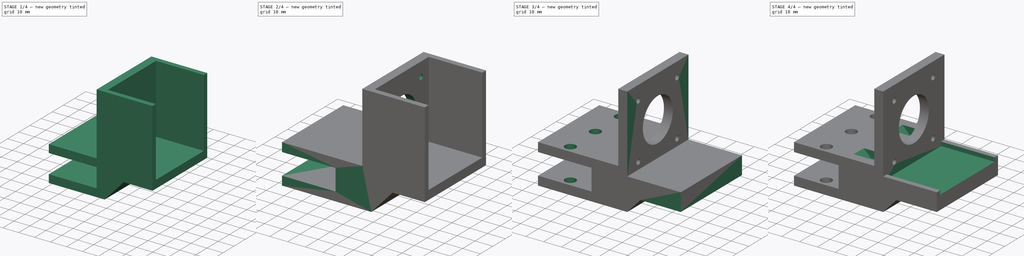
[diagram: build sequence overview — one tinted view per stage of 4, left to right]
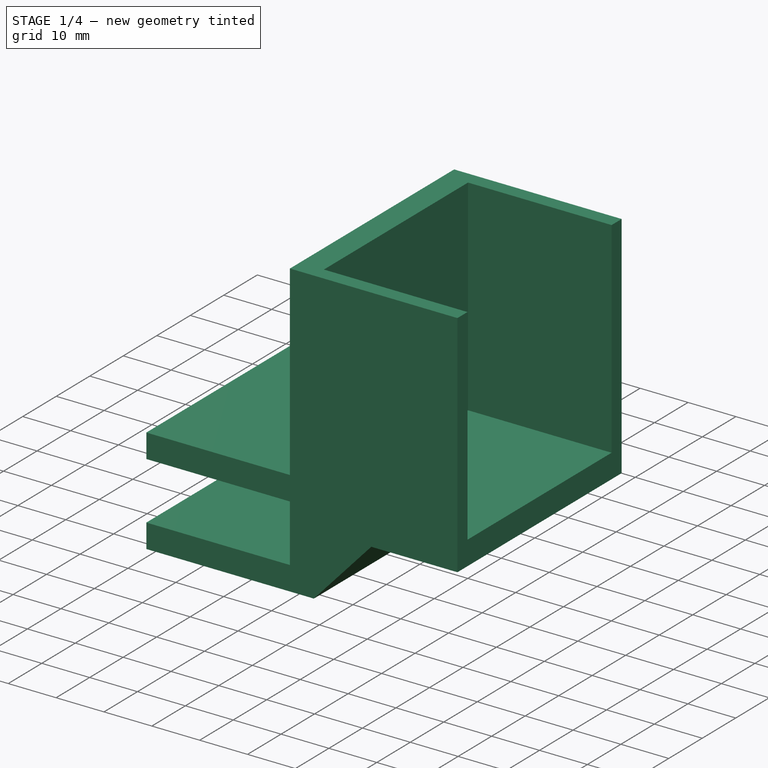
[diagram: stage 1 of 4 — iso view after this stage's code; geometry added in this stage tinted green]
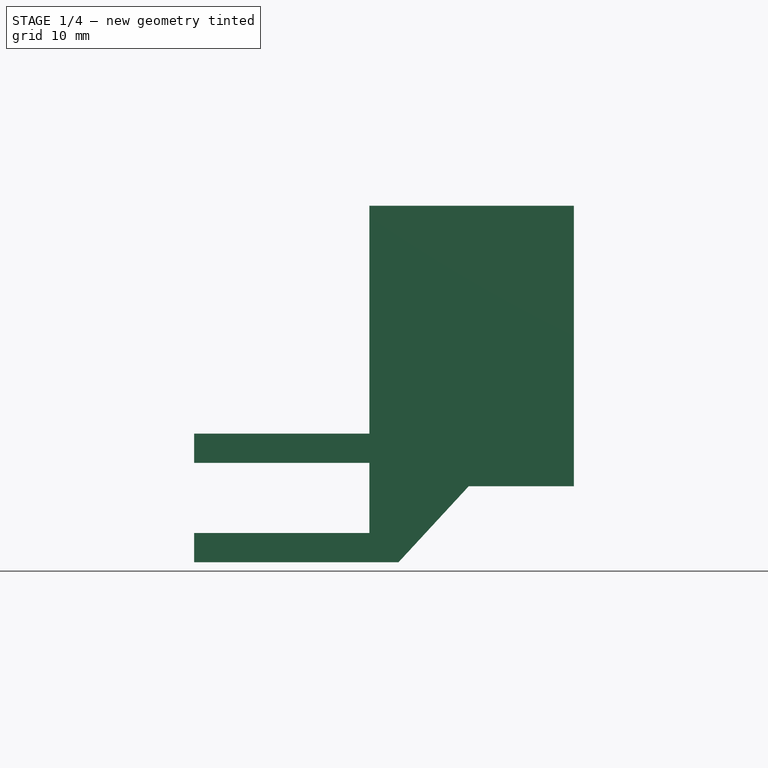
[diagram: stage 1 of 4 — front view after this stage's code; geometry added in this stage tinted green]
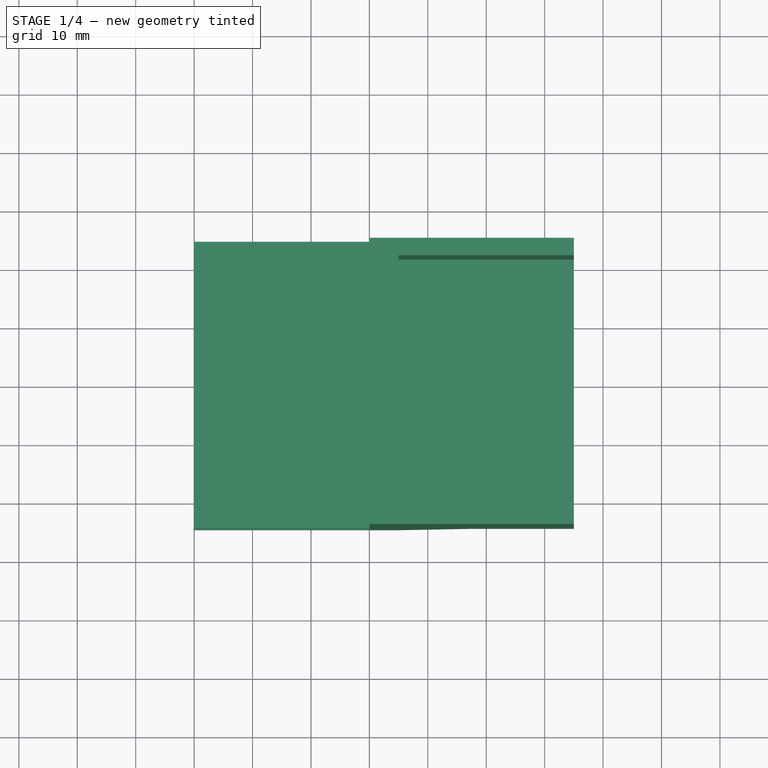
[diagram: stage 1 of 4 — top view after this stage's code; geometry added in this stage tinted green]
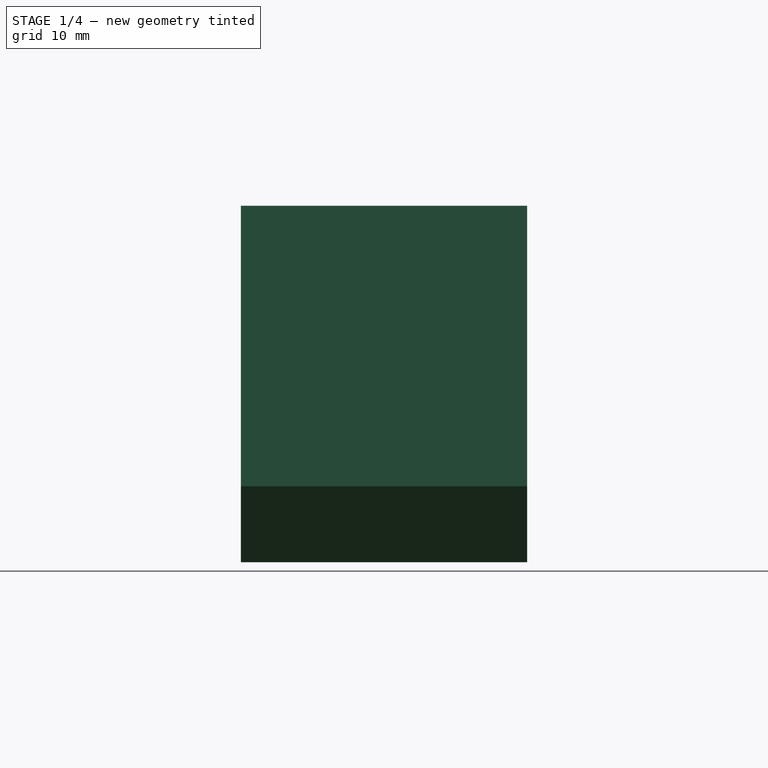
[diagram: stage 1 of 4 — right view after this stage's code; geometry added in this stage tinted green]
FCSTD DOCUMENT  (FreeCAD 1.0R39109 (Git))
Label: seat_motor
License: All rights reserved
LicenseURL: https://en.wikipedia.org/wiki/All_rights_reserved
objects: Sketcher::SketchObject×7, PartDesign::Pad×6, PartDesign::Pocket×6, PartDesign::Chamfer×2, PartDesign::Body×1
note: 57 computed .brp shape members not serialized (recipe doc carries the construction recipe); baked Part::Feature solids carry a one-line shape summary decoded from their .brp

FEATURE [Sketcher::SketchObject] Sketch
  ArcFitTolerance = 1e-06
  AttachmentSupport = -> [XZ_Plane]
  FullyConstrained = true
  MakeInternals = false
  MapMode = 5
  Placement = pos=(0,0,0) rot=(1,0,0;1.5708rad)
  sketch-geometry (14):
    g0: LineSegment StartX=0 StartY=17 StartZ=0 EndX=30 EndY=17 EndZ=0
    g1: LineSegment StartX=30 StartY=17 StartZ=0 EndX=30 EndY=5 EndZ=0
    g2: LineSegment StartX=30 StartY=5 StartZ=0 EndX=0 EndY=5 EndZ=0
    g3: LineSegment StartX=0 StartY=5 StartZ=0 EndX=0 EndY=0 EndZ=0
    g4: LineSegment StartX=65 StartY=13 StartZ=0 EndX=65 EndY=18 EndZ=0
    g5: LineSegment StartX=65 StartY=18 StartZ=0 EndX=35 EndY=18 EndZ=0
    g6: LineSegment StartX=35 StartY=18 StartZ=0 EndX=35 EndY=61 EndZ=0
    g7: LineSegment StartX=35 StartY=61 StartZ=0 EndX=30 EndY=61 EndZ=0
    g8: LineSegment StartX=30 StartY=61 StartZ=0 EndX=30 EndY=22 EndZ=0
    g9: LineSegment StartX=30 StartY=22 StartZ=0 EndX=0 EndY=22 EndZ=0
    g10: LineSegment StartX=0 StartY=22 StartZ=0 EndX=0 EndY=17 EndZ=0
    g11: LineSegment StartX=0 StartY=0 StartZ=0 EndX=35 EndY=0 EndZ=0
    g12: LineSegment StartX=35 StartY=0 StartZ=0 EndX=35 EndY=13 EndZ=0
    g13: LineSegment StartX=35 StartY=13 StartZ=0 EndX=65 EndY=13 EndZ=0
  constraints (41):
    c: PointOnObject(g0,g-2)
    c: Horizontal(g0)
    c: Coincident(g0,g1)
    c: Vertical(g1)
    c: Coincident(g1,g2)
    c: Horizontal(g2)
    c: Coincident(g2,g3)
    c: Vertical(g3)
    c: Vertical(g4)
    c: Coincident(g4,g5)
    c: Horizontal(g5)
    c: Coincident(g5,g6)
    c: Vertical(g6)
    c: Coincident(g6,g7)
    c: Horizontal(g7)
    c: Coincident(g7,g8)
    c: Vertical(g8)
    c: Coincident(g8,g9)
    c: Horizontal(g9)
    c: Coincident(g9,g10)
    c: Coincident(g10,g0)
    c: Vertical(g10)
    c: Coincident(g3,g11)
    c: Horizontal(g11)
    c: Vertical(g0,g8)
    c: DistanceX(g9,g9) = 30
    c: Equal(g10,g3)
    c: Distance(g10,g10) = 5
    c: DistanceY(g1,g1) = 12
    c: DistanceY(g5,g8) = 4
    c: Coincident(g11,g12)
    c: Coincident(g12,g13)
    c: Coincident(g13,g4)
    c: Horizontal(g13)
    c: Vertical(g12,g5)
    c: Distance(g7,g7) = 5
    c: DistanceY(g4,g4) = 5
    c: DistanceX(g5,g5) = 30
    c: DistanceY(g6,g6) = 43
    c: Coincident(g3,g-1)
    c: Vertical(g12)
FEATURE [PartDesign::Pad] Pad
  Direction = (0,-1,2e-16)
  Length = 60
  Length2 = 10
  Placement = pos=(0,0,0) rot=(1,0,0;1.5708rad)
  Profile = -> Sketch
  ReferenceAxis = -> Sketch [N_Axis]
  Refine = true
  Suppressed = false
  Type = 0
FEATURE [Sketcher::SketchObject] Sketch001
  ArcFitTolerance = 1e-06
  AttachmentSupport = -> [Pad]
  FullyConstrained = true
  MakeInternals = false
  MapMode = 5
  Placement = pos=(0,7.9e-15,18) rot=(0,0,1;3.14159rad)
  sketch-geometry (10):
    g0: LineSegment StartX=-35 StartY=54.5 StartZ=0 EndX=-35 EndY=51.5 EndZ=0
    g1: LineSegment StartX=-35 StartY=51.5 StartZ=0 EndX=-65 EndY=51.5 EndZ=0
    g2: LineSegment StartX=-65 StartY=51.5 StartZ=0 EndX=-65 EndY=54.5 EndZ=0
    g3: LineSegment StartX=-65 StartY=54.5 StartZ=0 EndX=-35 EndY=54.5 EndZ=0
    g4: LineSegment StartX=-35 StartY=5.5 StartZ=0 EndX=-35 EndY=8.5 EndZ=0
    g5: LineSegment StartX=-35 StartY=8.5 StartZ=0 EndX=-65 EndY=8.5 EndZ=0
    g6: LineSegment StartX=-65 StartY=8.5 StartZ=0 EndX=-65 EndY=5.5 EndZ=0
    g7: LineSegment StartX=-65 StartY=5.5 StartZ=0 EndX=-35 EndY=5.5 EndZ=0
    g8: LineSegment [constr] StartX=-80 StartY=0 StartZ=0 EndX=-80 EndY=30 EndZ=0
    g9: LineSegment [constr] StartX=-75 StartY=0 StartZ=0 EndX=-75 EndY=60 EndZ=0
  constraints (32):
    c: Coincident(g0,g1)
    c: Coincident(g1,g2)
    c: Coincident(g2,g3)
    c: Coincident(g3,g0)
    c: Vertical(g0)
    c: Vertical(g2)
    c: Horizontal(g1)
    c: Horizontal(g3)
    c: Coincident(g4,g5)
    c: Coincident(g5,g6)
    c: Coincident(g6,g7)
    c: Coincident(g7,g4)
    c: Vertical(g4)
    c: Vertical(g6)
    c: Horizontal(g5)
    c: Horizontal(g7)
    c: DistanceY(g2,g2) = 3
    c: Equal(g6,g2)
    c: Equal(g5,g1)
    c: Vertical(g4,g0)
    c: Distance(g8) = 30
    c: Vertical(g8)
    c: PointOnObject(g8,g-1)
    c: DistanceX(g7,g7) = 30
    c: DistanceX(g6,g-1) = 65
    c: PointOnObject(g9,g-1)
    c: Vertical(g9)
    c: DistanceY(g9,g9) = 60
    c: DistanceY(g4,g0) = 43
    c: DistanceY(g5,g8) = 21.5
    c: Distance(g8,g9) = 5
    c: DistanceX(g9,g-1) = 75
FEATURE [Sketcher::SketchObject] Sketch003
  ArcFitTolerance = 1e-06
  FullyConstrained = true
  MakeInternals = false
  MapMode = 5
  Placement = pos=(65,-1.6944e-11,1.09092e-11) rot=(0.707107,0,0.707107;3.14159rad)
  sketch-geometry (8):
    g0: LineSegment StartX=-5 StartY=61.5 StartZ=0 EndX=-5 EndY=54.5 EndZ=0
    g1: LineSegment StartX=-5 StartY=54.5 StartZ=0 EndX=65 EndY=54.5 EndZ=0
    g2: LineSegment StartX=65 StartY=54.5 StartZ=0 EndX=65 EndY=61.5 EndZ=0
    g3: LineSegment StartX=65 StartY=61.5 StartZ=0 EndX=-5 EndY=61.5 EndZ=0
    g4: LineSegment StartX=-5 StartY=5.5 StartZ=0 EndX=-5 EndY=-1.5 EndZ=0
    g5: LineSegment StartX=-5 StartY=-1.5 StartZ=0 EndX=65 EndY=-1.5 EndZ=0
    g6: LineSegment StartX=65 StartY=-1.5 StartZ=0 EndX=65 EndY=5.5 EndZ=0
    g7: LineSegment StartX=65 StartY=5.5 StartZ=0 EndX=-5 EndY=5.5 EndZ=0
  constraints (24):
    c: Coincident(g0,g1)
    c: Coincident(g1,g2)
    c: Coincident(g2,g3)
    c: Coincident(g3,g0)
    c: Vertical(g0)
    c: Vertical(g2)
    c: Horizontal(g1)
    c: Horizontal(g3)
    c: Coincident(g4,g5)
    c: Coincident(g5,g6)
    c: Coincident(g6,g7)
    c: Coincident(g7,g4)
    c: Vertical(g4)
    c: Vertical(g6)
    c: Horizontal(g5)
    c: Horizontal(g7)
    c: Equal(g6,g2)
    c: DistanceY(g0,g0) = 7
    c: DistanceY(g4,g0) = 49
    c: Vertical(g4,g0)
    c: DistanceX(g7,g7) = 70
    c: DistanceX(g4,g-1) = 5
    c: DistanceY(g-1,g4) = 5.5
    c: Vertical(g1,g6)
FEATURE [PartDesign::Pad] Pad001
  BaseFeature = -> Pad
  Direction = (0,0,1)
  Length = 43
  Length2 = 10
  Placement = pos=(0,0,0) rot=(1,0,0;1.5708rad)
  Profile = -> Sketch001
  ReferenceAxis = -> Sketch001 [N_Axis]
  Refine = true
  Suppressed = false
  Type = 0
FEATURE [PartDesign::Pocket] Pocket001
  BaseFeature = -> Pad001
  Direction = (-1,2.608e-13,-1.679e-13)
  Length = 5
  Length2 = 5
  Placement = pos=(0,0,0) rot=(1,0,0;1.5708rad)
  Profile = -> Sketch003
  ReferenceAxis = -> Sketch003 [N_Axis]
  Refine = true
  Suppressed = false
  Type = 1
FEATURE [PartDesign::Chamfer] Chamfer
  Angle = 45
  Base = -> Pocket001 [Edge11]
  BaseFeature = -> Pocket001
  ChamferType = 1
  FlipDirection = false
  Placement = pos=(0,0,0) rot=(1,0,0;1.5708rad)
  Refine = true
  Size = 12
  Size2 = 12.99
  SupportTransform = false
  Suppressed = false
  UseAllEdges = false
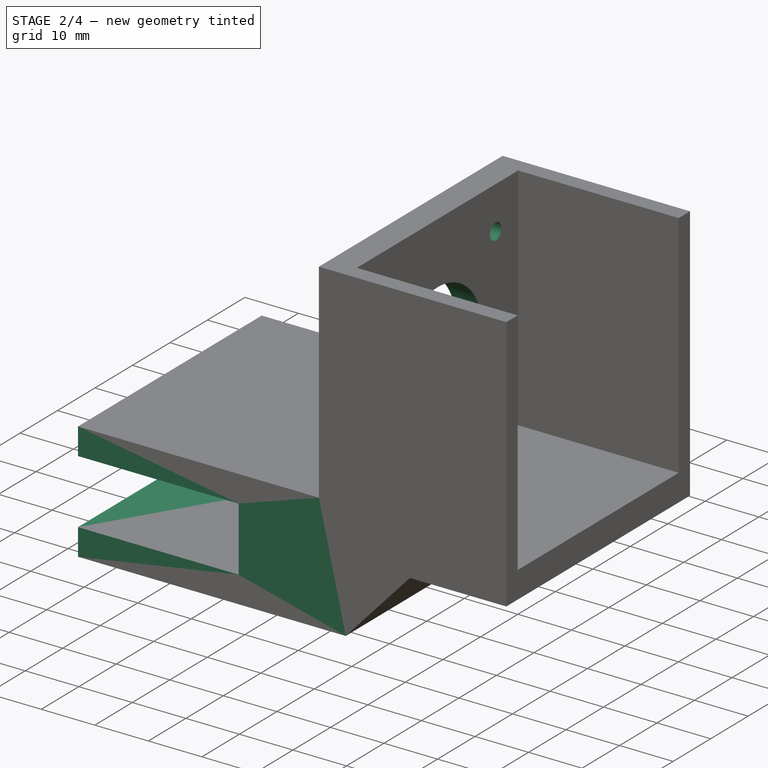
[diagram: stage 2 of 4 — iso view after this stage's code; geometry added in this stage tinted green]
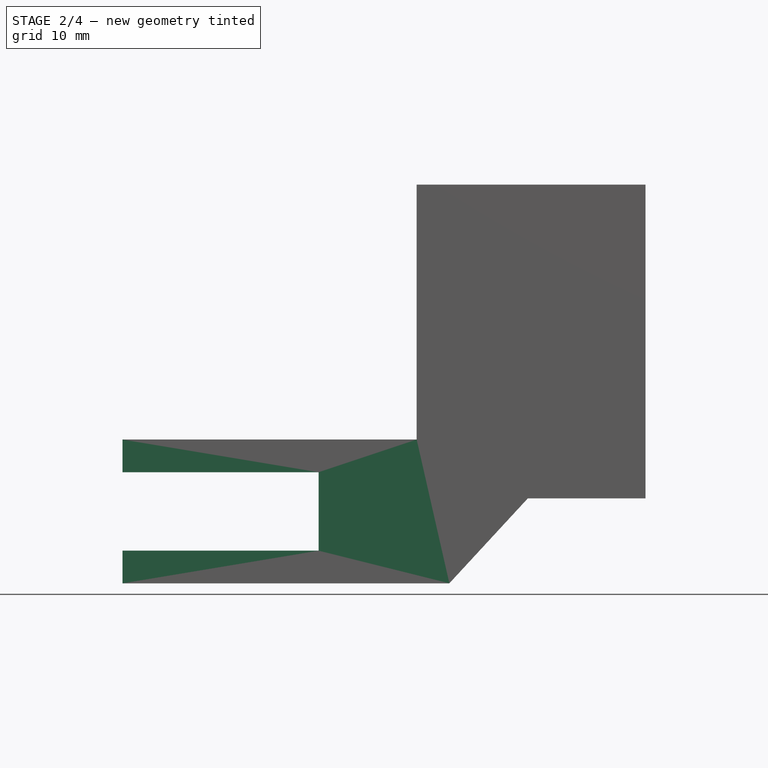
[diagram: stage 2 of 4 — front view after this stage's code; geometry added in this stage tinted green]
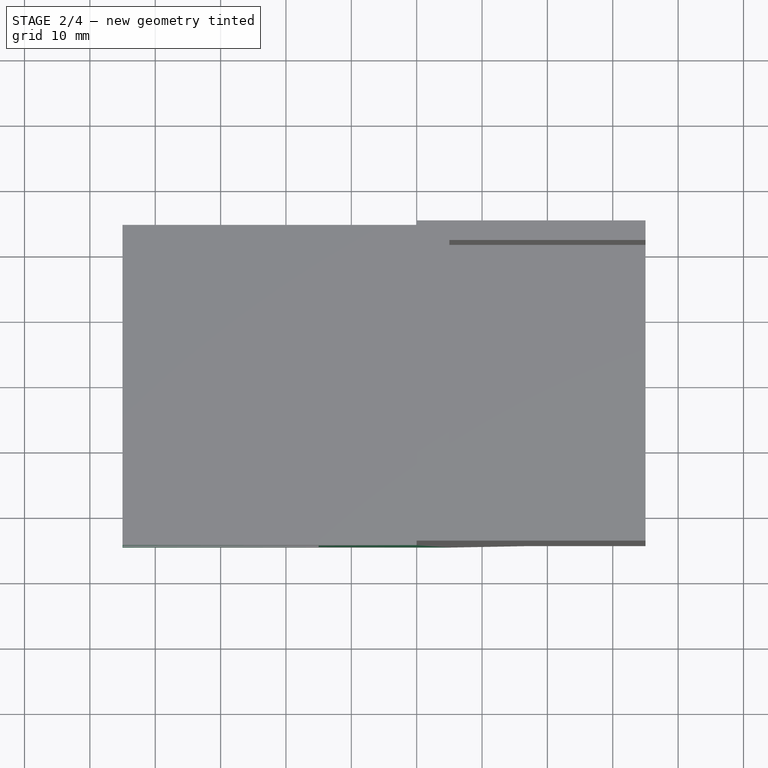
[diagram: stage 2 of 4 — top view after this stage's code; geometry added in this stage tinted green]
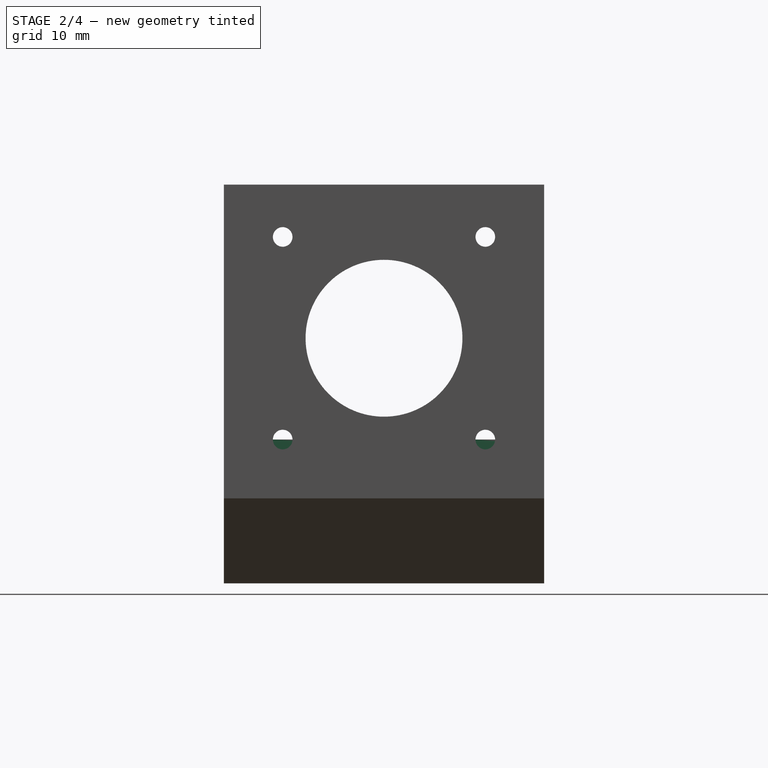
[diagram: stage 2 of 4 — right view after this stage's code; geometry added in this stage tinted green]
FEATURE [Sketcher::SketchObject] Sketch004
  ArcFitTolerance = 1e-06
  AttachmentSupport = -> [Chamfer]
  FullyConstrained = true
  MakeInternals = false
  MapMode = 5
  Placement = pos=(35,0,0) rot=(0.707107,0,0.707107;3.14159rad)
  sketch-geometry (13):
    g0: Circle CenterX=37.5 CenterY=30 CenterZ=0 NormalX=0 NormalY=0 NormalZ=1 AngleXU=0 Radius=12
    g1: LineSegment [constr] StartX=22 StartY=45.5 StartZ=0 EndX=22 EndY=14.5 EndZ=0
    g2: LineSegment [constr] StartX=22 StartY=14.5 StartZ=0 EndX=53 EndY=14.5 EndZ=0
    g3: LineSegment [constr] StartX=53 StartY=14.5 StartZ=0 EndX=53 EndY=45.5 EndZ=0
    g4: LineSegment [constr] StartX=53 StartY=45.5 StartZ=0 EndX=22 EndY=45.5 EndZ=0
    g5: Circle CenterX=22 CenterY=45.5 CenterZ=0 NormalX=0 NormalY=0 NormalZ=1 AngleXU=0 Radius=1.5
    g6: Circle CenterX=53 CenterY=45.5 CenterZ=0 NormalX=0 NormalY=0 NormalZ=1 AngleXU=0 Radius=1.5
    g7: Circle CenterX=53 CenterY=14.5 CenterZ=0 NormalX=0 NormalY=0 NormalZ=1 AngleXU=0 Radius=1.5
    g8: Circle CenterX=22 CenterY=14.5 CenterZ=0 NormalX=0 NormalY=0 NormalZ=1 AngleXU=0 Radius=1.5
    g9: LineSegment [constr] StartX=16 StartY=51.5 StartZ=0 EndX=16 EndY=8.5 EndZ=0
    g10: LineSegment [constr] StartX=16 StartY=8.5 StartZ=0 EndX=59 EndY=8.5 EndZ=0
    g11: LineSegment [constr] StartX=59 StartY=8.5 StartZ=0 EndX=59 EndY=51.5 EndZ=0
    g12: LineSegment [constr] StartX=59 StartY=51.5 StartZ=0 EndX=16 EndY=51.5 EndZ=0
  constraints (35):
    c: Diameter(g0) = 24
    c: Coincident(g1,g2)
    c: Coincident(g2,g3)
    c: Coincident(g3,g4)
    c: Coincident(g4,g1)
    c: Vertical(g1)
    c: Vertical(g3)
    c: Horizontal(g2)
    c: Horizontal(g4)
    c: Coincident(g5,g1)
    c: Coincident(g6,g3)
    c: Coincident(g7,g2)
    c: Coincident(g8,g1)
    c: Equal(g8,g5)
    c: Equal(g5,g6)
    c: Equal(g6,g7)
    c: Diameter(g7) = 3
    c: Equal(g2,g3)
    c: DistanceY(g3,g3) = 31
    c: DistanceX(g0,g2) = 15.5
    c: DistanceY(g2,g0) = 15.5
    c: Coincident(g9,g10)
    c: Coincident(g10,g11)
    c: Coincident(g11,g12)
    c: Coincident(g12,g9)
    c: Vertical(g9)
    c: Vertical(g11)
    c: Horizontal(g10)
    c: Horizontal(g12)
    c: Equal(g11,g10)
    c: DistanceX(g10,g10) = 43
    c: DistanceX(g-1,g1) = 22
    c: DistanceY(g-1,g1) = 14.5
    c: DistanceY(g1,g9) = 6
    c: DistanceX(g9,g1) = 6
FEATURE [PartDesign::Pocket] Pocket002
  BaseFeature = -> Chamfer
  Direction = (-1,0,2e-16)
  Length = 5
  Length2 = 5
  Placement = pos=(0,0,0) rot=(1,0,0;1.5708rad)
  Profile = -> Sketch004
  ReferenceAxis = -> Sketch004 [N_Axis]
  Refine = true
  Suppressed = false
  Type = 0
FEATURE [PartDesign::Pad] Pad002
  BaseFeature = -> Pocket002
  Direction = (-1,0,0)
  Length = 15
  Length2 = 10
  Placement = pos=(0,0,0) rot=(1,0,0;1.5708rad)
  Profile = -> Pocket002 [Face14]
  Refine = true
  Suppressed = false
  Type = 0
FEATURE [PartDesign::Pad] Pad003
  BaseFeature = -> Pad002
  Direction = (-1,0,0)
  Length = 15
  Length2 = 10
  Placement = pos=(0,0,0) rot=(1,0,0;1.5708rad)
  Profile = -> Pad002 [Face11,Face8]
  Refine = true
  Suppressed = false
  Type = 0
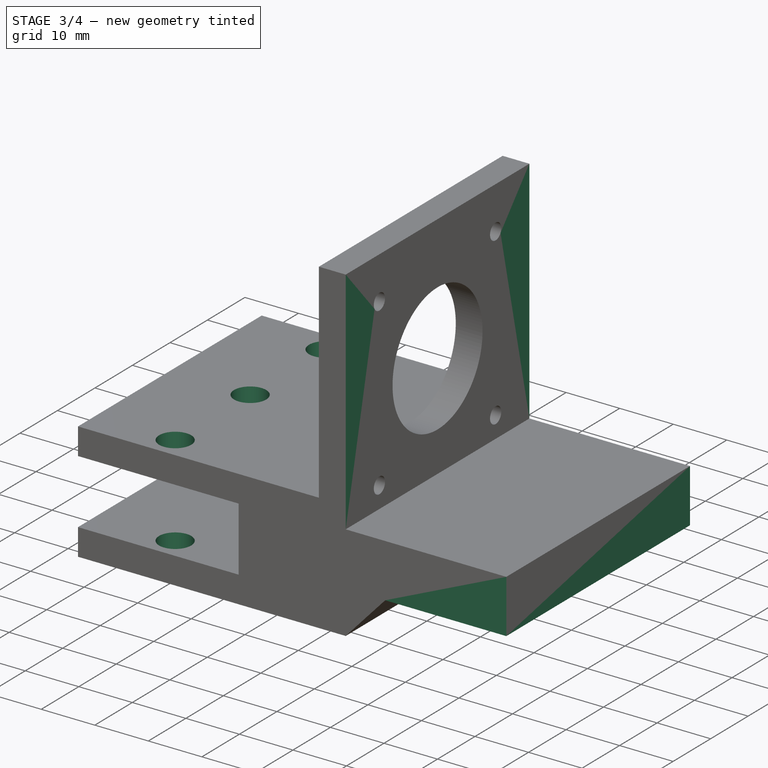
[diagram: stage 3 of 4 — iso view after this stage's code; geometry added in this stage tinted green]
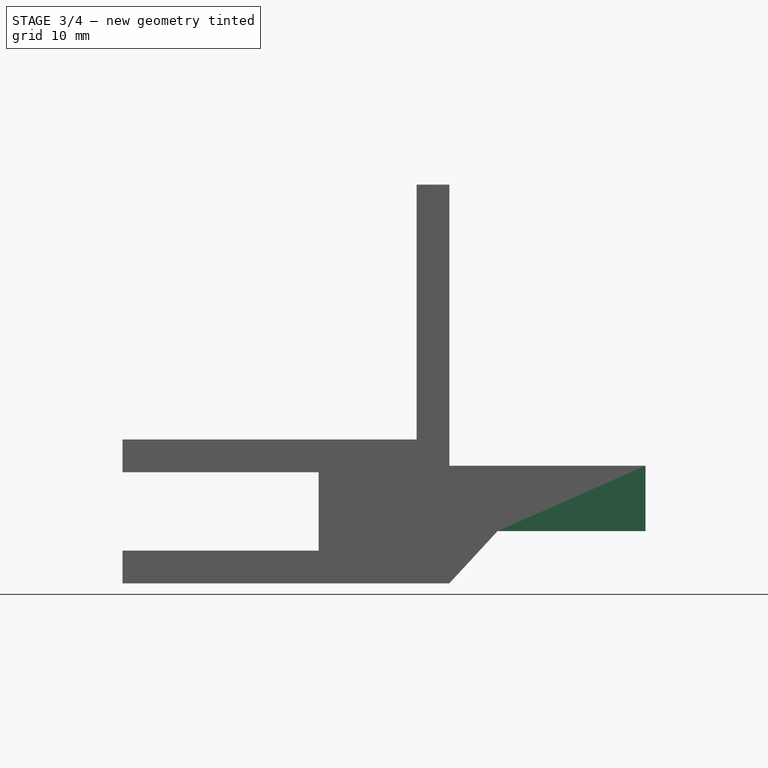
[diagram: stage 3 of 4 — front view after this stage's code; geometry added in this stage tinted green]
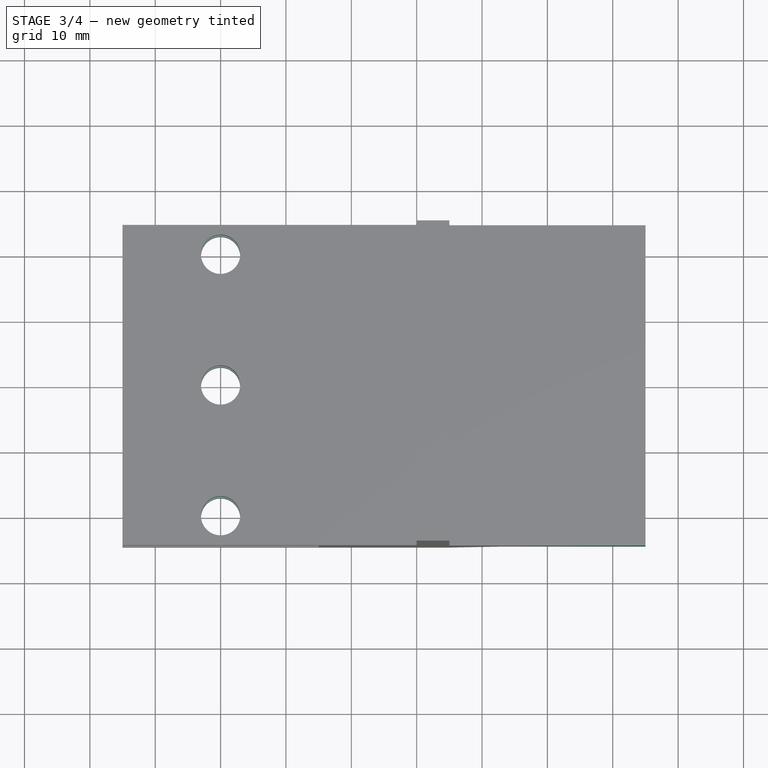
[diagram: stage 3 of 4 — top view after this stage's code; geometry added in this stage tinted green]
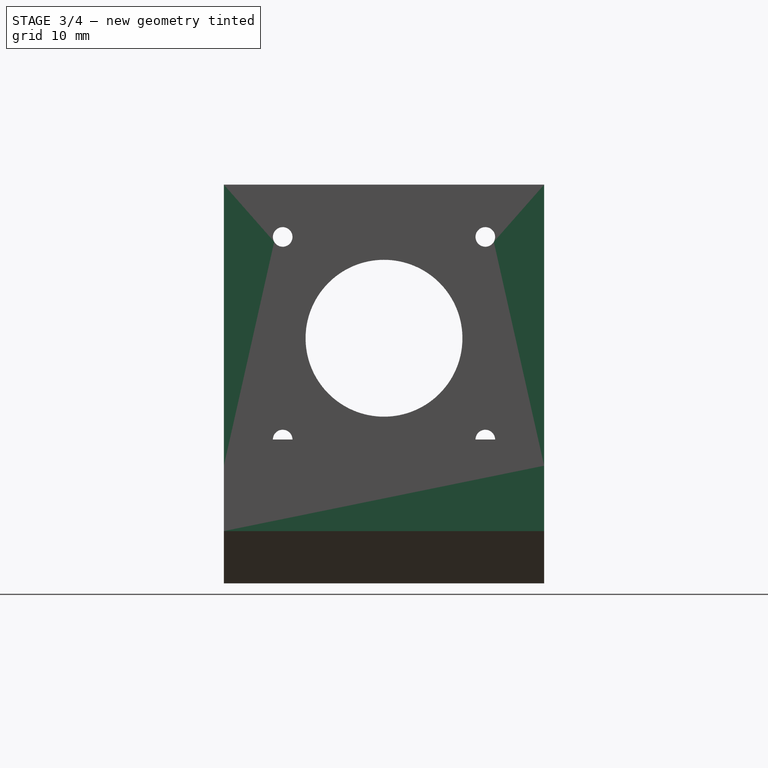
[diagram: stage 3 of 4 — right view after this stage's code; geometry added in this stage tinted green]
FEATURE [Sketcher::SketchObject] Sketch005
  ArcFitTolerance = 1e-06
  AttachmentSupport = -> [Pad003]
  FullyConstrained = true
  MakeInternals = false
  MapMode = 5
  Placement = pos=(0,9.4e-15,22) rot=(0,0,1;3.14159rad)
  sketch-geometry (5):
    g0: LineSegment [constr] StartX=15 StartY=5.5 StartZ=0 EndX=-15 EndY=5.5 EndZ=0
    g1: LineSegment [constr] StartX=15 StartY=5.5 StartZ=0 EndX=15 EndY=54.5 EndZ=0
    g2: Circle CenterX=1.8e-15 CenterY=50 CenterZ=0 NormalX=0 NormalY=0 NormalZ=1 AngleXU=0 Radius=3
    g3: Circle CenterX=1.8e-15 CenterY=30 CenterZ=0 NormalX=0 NormalY=0 NormalZ=1 AngleXU=0 Radius=3
    g4: Circle CenterX=1.8e-15 CenterY=10 CenterZ=0 NormalX=0 NormalY=0 NormalZ=1 AngleXU=0 Radius=3
  constraints (16):
    c: Distance(g0) = 30
    c: Horizontal(g0)
    c: DistanceX(g-1,g0) = 15
    c: DistanceY(g-1,g0) = 5.5
    c: Vertical(g1)
    c: DistanceY(g1,g1) = 49
    c: Vertical(g4,g3)
    c: Vertical(g3,g2)
    c: DistanceX(g0,g4) = 15
    c: DistanceY(g4,g2) = 40
    c: DistanceY(g3,g2) = 20
    c: DistanceY(g3,g1) = 24.5
    c: Equal(g4,g3)
    c: Equal(g3,g2)
    c: Diameter(g2) = 6
    c: Coincident(g1,g0)
FEATURE [PartDesign::Pocket] Pocket
  BaseFeature = -> Pad003
  Direction = (0,0,-1)
  Length = 5
  Length2 = 5
  Placement = pos=(0,0,0) rot=(1,0,0;1.5708rad)
  Profile = -> Sketch005
  ReferenceAxis = -> Sketch005 [N_Axis]
  Refine = true
  Suppressed = false
  Type = 1
FEATURE [PartDesign::Pocket] Pocket003
  BaseFeature = -> Pocket
  Direction = (0,-1,2e-16)
  Length = 5
  Length2 = 50
  Placement = pos=(0,0,0) rot=(1,0,0;1.5708rad)
  Profile = -> Pocket [Face16]
  Refine = true
  Suppressed = false
  Type = 4
FEATURE [PartDesign::Pad] Pad004
  BaseFeature = -> Pocket003
  Direction = (0,3e-16,1)
  Length = 10
  Length2 = 10
  Placement = pos=(0,0,0) rot=(1,0,0;1.5708rad)
  Profile = -> Pocket003 [Face29]
  Refine = true
  Reversed = true
  Suppressed = false
  Type = 0
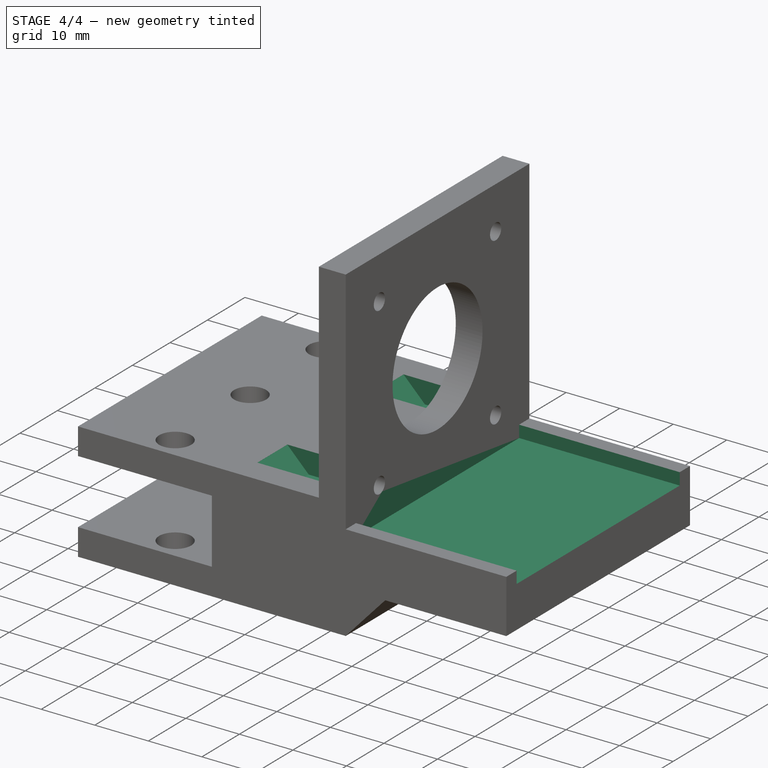
[diagram: stage 4 of 4 — iso view after this stage's code; geometry added in this stage tinted green]
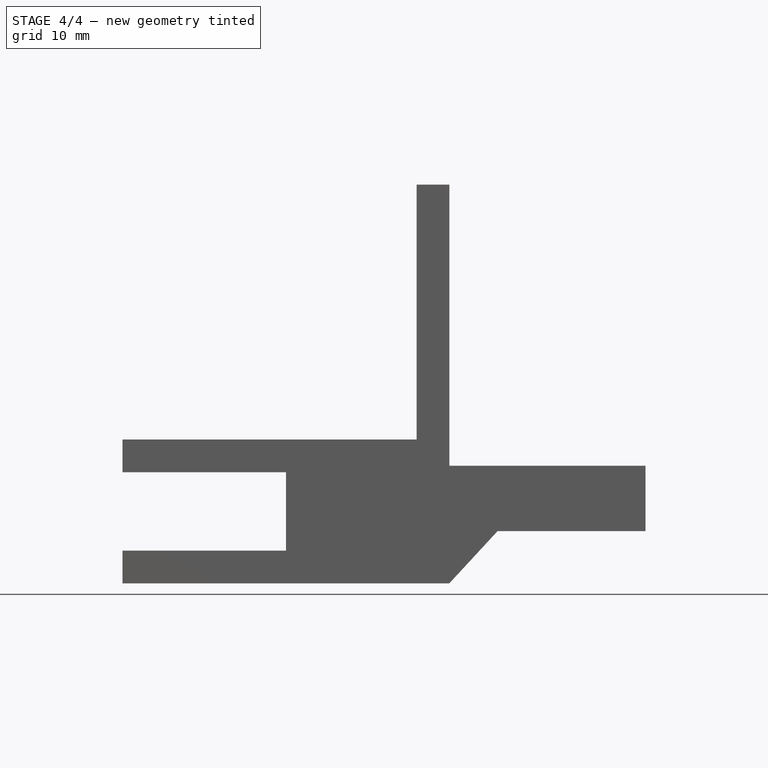
[diagram: stage 4 of 4 — front view after this stage's code; geometry added in this stage tinted green]
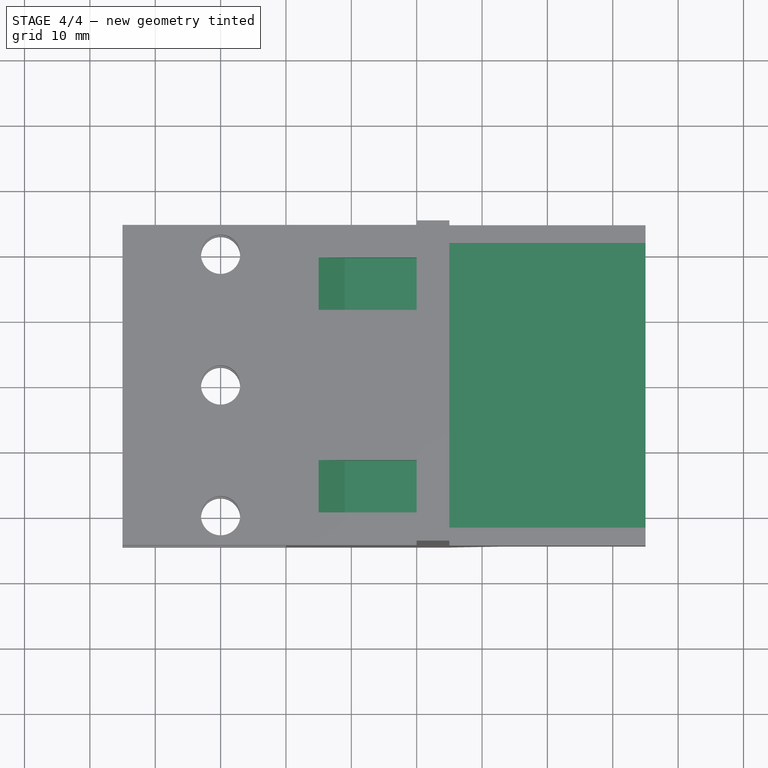
[diagram: stage 4 of 4 — top view after this stage's code; geometry added in this stage tinted green]
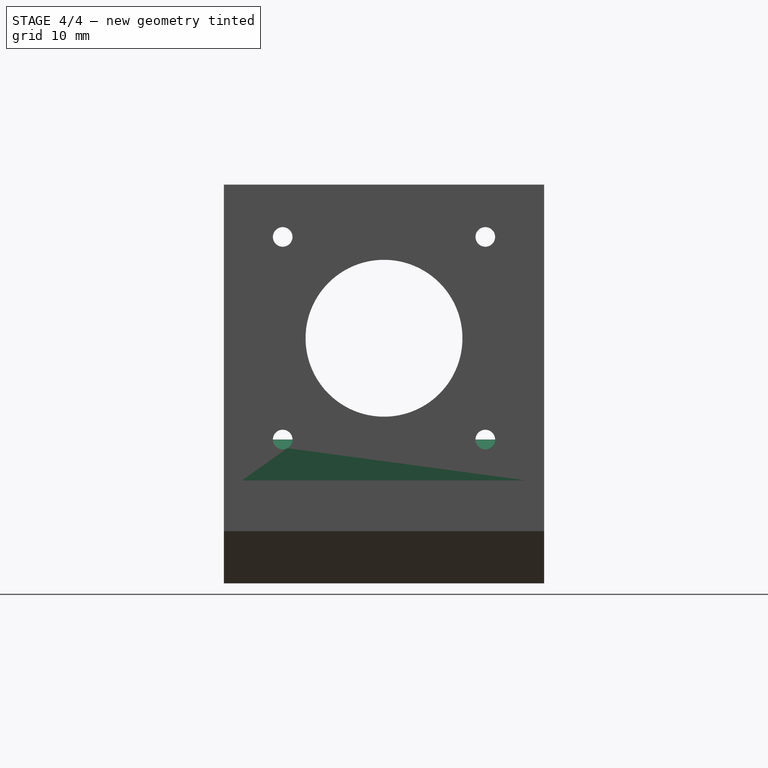
[diagram: stage 4 of 4 — right view after this stage's code; geometry added in this stage tinted green]
FEATURE [Sketcher::SketchObject] Sketch006
  ArcFitTolerance = 1e-06
  AttachmentSupport = -> [Pad004]
  FullyConstrained = true
  MakeInternals = false
  MapMode = 5
  Placement = pos=(65,-2.34e-13,-1.668e-13) rot=(0.707107,0,0.707107;3.14159rad)
  sketch-geometry (5):
    g0: Circle [constr] CenterX=37.5 CenterY=30 CenterZ=0 NormalX=0 NormalY=0 NormalZ=1 AngleXU=0 Radius=12
    g1: LineSegment StartX=15.75 StartY=51.75 StartZ=0 EndX=15.75 EndY=8.25 EndZ=0
    g2: LineSegment StartX=15.75 StartY=8.25 StartZ=0 EndX=59.25 EndY=8.25 EndZ=0
    g3: LineSegment StartX=59.25 StartY=8.25 StartZ=0 EndX=59.25 EndY=51.75 EndZ=0
    g4: LineSegment StartX=59.25 StartY=51.75 StartZ=0 EndX=15.75 EndY=51.75 EndZ=0
  constraints (15):
    c: Diameter(g0) = 24
    c: DistanceX(g-1,g0) = 37.5
    c: DistanceY(g-1,g0) = 30
    c: Coincident(g1,g2)
    c: Coincident(g2,g3)
    c: Coincident(g3,g4)
    c: Coincident(g4,g1)
    c: Vertical(g1)
    c: Vertical(g3)
    c: Horizontal(g2)
    c: Horizontal(g4)
    c: Equal(g2,g3)
    c: DistanceY(g3,g3) = 43.5
    c: DistanceY(g2,g0) = 21.75
    c: DistanceX(g0,g2) = 21.75
FEATURE [PartDesign::Pocket] Pocket004
  BaseFeature = -> Pad004
  Direction = (-1,3.6e-15,2.7e-15)
  Length = 30
  Length2 = 5
  Placement = pos=(0,0,0) rot=(1,0,0;1.5708rad)
  Profile = -> Sketch006
  ReferenceAxis = -> Sketch006 [N_Axis]
  Refine = true
  Suppressed = false
  Type = 0
FEATURE [PartDesign::Pad] Pad005
  BaseFeature = -> Pocket004
  Direction = (-1,0,0)
  Length = 5
  Length2 = 10
  Placement = pos=(0,0,0) rot=(1,0,0;1.5708rad)
  Profile = -> Pocket004 [Face11]
  Refine = true
  Suppressed = false
  Type = 0
FEATURE [Sketcher::SketchObject] Sketch007
  ArcFitTolerance = 1e-06
  AttachmentSupport = -> [Pad005]
  FullyConstrained = true
  MakeInternals = false
  MapMode = 5
  Placement = pos=(30,0,0) rot=(0.707107,0,-0.707107;3.14159rad)
  sketch-geometry (9):
    g0: LineSegment StartX=-26 StartY=49.5 StartZ=0 EndX=-26 EndY=41.5 EndZ=0
    g1: LineSegment StartX=-26 StartY=41.5 StartZ=0 EndX=-18 EndY=41.5 EndZ=0
    g2: LineSegment StartX=-18 StartY=41.5 StartZ=0 EndX=-18 EndY=49.5 EndZ=0
    g3: LineSegment StartX=-18 StartY=49.5 StartZ=0 EndX=-26 EndY=49.5 EndZ=0
    g4: LineSegment StartX=-26 StartY=18.5 StartZ=0 EndX=-26 EndY=10.5 EndZ=0
    g5: LineSegment StartX=-26 StartY=10.5 StartZ=0 EndX=-18 EndY=10.5 EndZ=0
    g6: LineSegment StartX=-18 StartY=10.5 StartZ=0 EndX=-18 EndY=18.5 EndZ=0
    g7: LineSegment StartX=-18 StartY=18.5 StartZ=0 EndX=-26 EndY=18.5 EndZ=0
    g8: LineSegment [constr] StartX=-22 StartY=14.5 StartZ=0 EndX=-22 EndY=45.5 EndZ=0
  constraints (28):
    c: Coincident(g0,g1)
    c: Coincident(g1,g2)
    c: Coincident(g2,g3)
    c: Coincident(g3,g0)
    c: Vertical(g0)
    c: Vertical(g2)
    c: Horizontal(g1)
    c: Horizontal(g3)
    c: Coincident(g4,g5)
    c: Coincident(g5,g6)
    c: Coincident(g6,g7)
    c: Coincident(g7,g4)
    c: Vertical(g4)
    c: Vertical(g6)
    c: Horizontal(g5)
    c: Horizontal(g7)
    c: Equal(g6,g5)
    c: Equal(g1,g2)
    c: Equal(g2,g6)
    c: Distance(g8) = 31
    c: Vertical(g8)
    c: DistanceY(g-1,g8) = 14.5
    c: DistanceX(g8,g-1) = 22
    c: DistanceY(g6,g6) = 8
    c: DistanceX(g4,g8) = 4
    c: DistanceY(g4,g8) = 4
    c: Vertical(g0,g4)
    c: DistanceY(g0,g8) = 4
FEATURE [PartDesign::Pocket] Pocket005
  BaseFeature = -> Pad005
  Direction = (1,0,2e-16)
  Length = 15
  Length2 = 5
  Placement = pos=(0,0,0) rot=(1,0,0;1.5708rad)
  Profile = -> Sketch007
  ReferenceAxis = -> Sketch007 [N_Axis]
  Refine = true
  Reversed = true
  Suppressed = false
  Type = 0
FEATURE [PartDesign::Chamfer] Chamfer001
  Angle = 45
  Base = -> Pocket005 [Edge113,Edge106]
  BaseFeature = -> Pocket005
  ChamferType = 0
  FlipDirection = false
  Placement = pos=(0,0,0) rot=(1,0,0;1.5708rad)
  Refine = true
  Size = 3.99
  Size2 = 1
  SupportTransform = false
  Suppressed = false
  UseAllEdges = false
FEATURE [PartDesign::Body] Body
  AllowCompound = false
  Group = -> [Sketch,Pad,Sketch001,Pad001,Sketch003,Pocket001,Chamfer,Sketch004,Pocket002,Pad002,Pad003,Sketch005,Pocket,Pocket003,Pad004,Sketch006,Pocket004,Pad005,Sketch007,Pocket005,Chamfer001]
  Origin = -> Origin
  Tip = -> Chamfer001
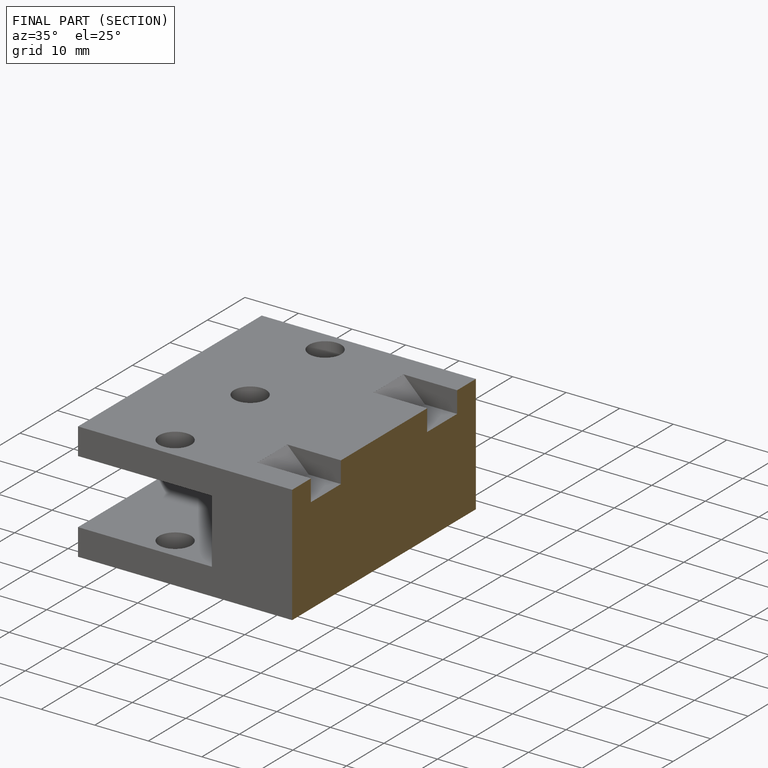
[diagram: finished part — half-section view (interior)]
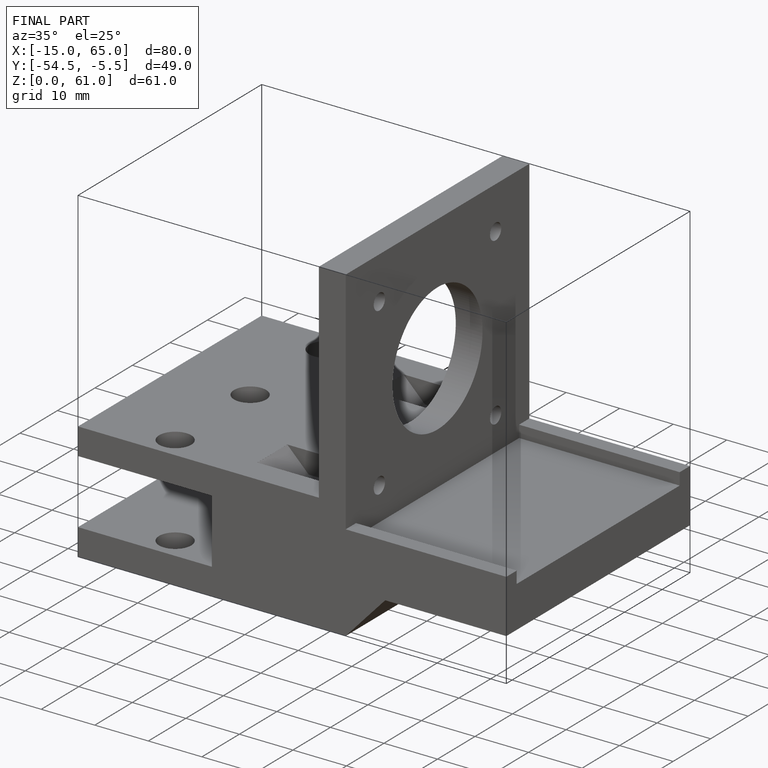
[diagram: finished part — iso view with bounding-box wireframe]
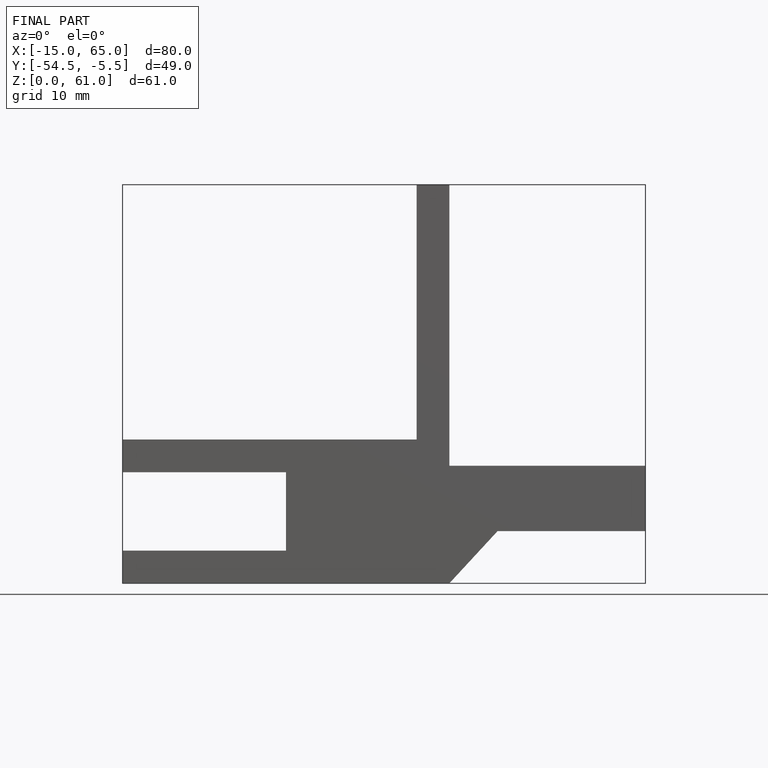
[diagram: finished part — front view with bounding-box wireframe]
